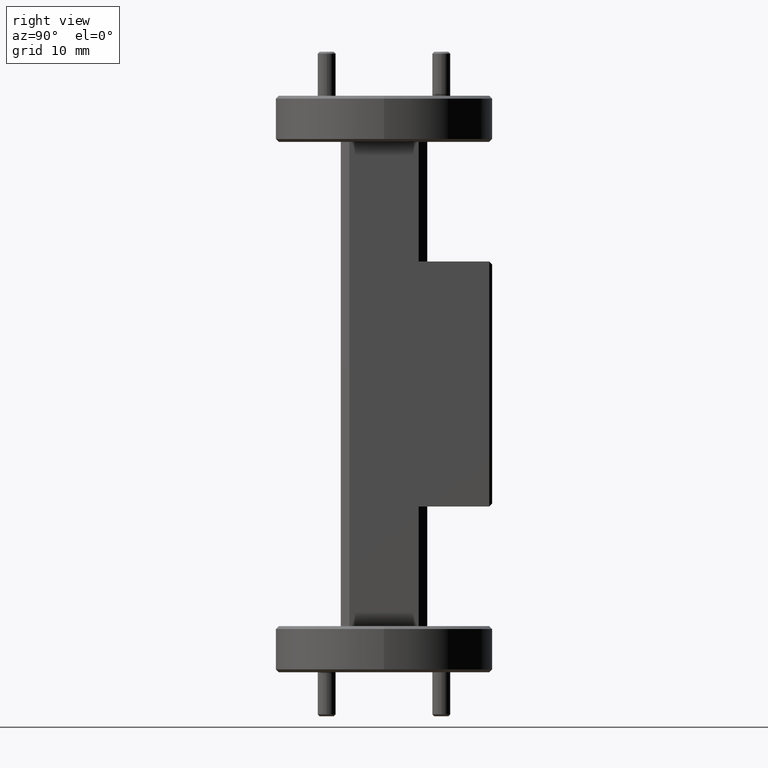
[diagram: clean part render]
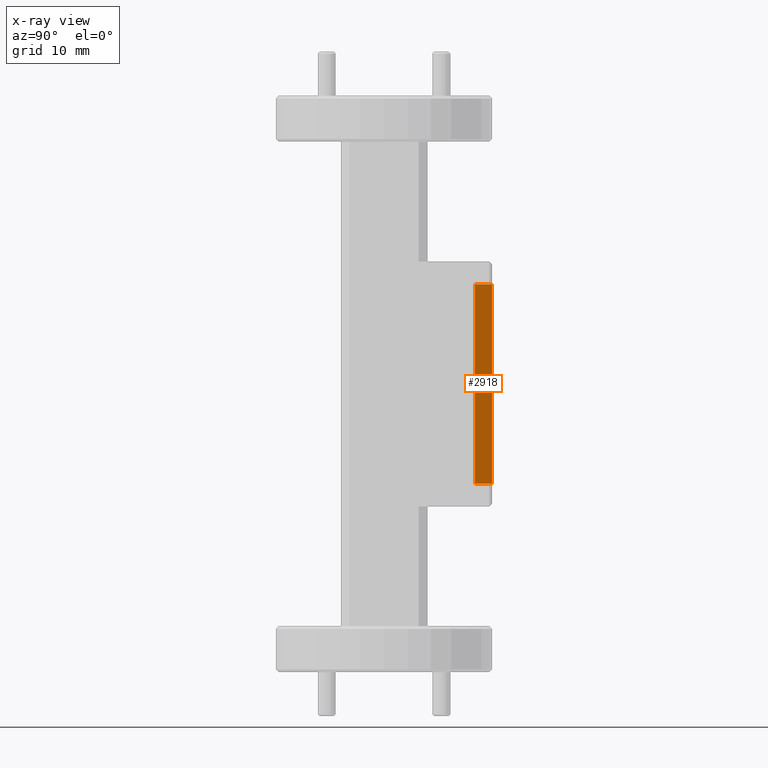
[diagram: x-ray — body ghosted, one internal face saturated and labeled with its STEP entity id]
A machine part, right view, then the same camera in x-ray: the body is ghosted and one INTERNAL B-rep face — a face not visible from any outside direction — is saturated and labeled: STEP entity #2918.
In plain terms, the highlighted planar face has unit normal (1, 0, -0).
Its self-contained STEP definition (entity closure, byte-faithful):
#38 = CARTESIAN_POINT ( 'NONE',  ( 0.1174999999999998684, 0.3150000000000000577, -0.3450000000000000844 ) ) ;
#217 = CARTESIAN_POINT ( 'NONE',  ( 0.1174999999999999795, 0.3150000000000000577, 0.3449999999999998068 ) ) ;
#283 = LINE ( 'NONE', #6521, #4229 ) ;
#298 = DIRECTION ( 'NONE',  ( -1.484699996556665039E-16, -0.000000000000000000, -1.000000000000000000 ) ) ;
#595 = EDGE_CURVE ( 'NONE', #6013, #2043, #283, .T. ) ;
#676 = EDGE_CURVE ( 'NONE', #4477, #2043, #7270, .T. ) ;
#686 = LINE ( 'NONE', #217, #3543 ) ;
#750 = ORIENTED_EDGE ( 'NONE', *, *, #595, .T. ) ;
#864 = DIRECTION ( 'NONE',  ( -1.484699996556665039E-16, -0.000000000000000000, -1.000000000000000000 ) ) ;
#1005 = PLANE ( 'NONE',  #2902 ) ;
#1381 = VECTOR ( 'NONE', #6691, 39.37007874015748143 ) ;
#1449 = ORIENTED_EDGE ( 'NONE', *, *, #6125, .T. ) ;
#1667 = VECTOR ( 'NONE', #298, 39.37007874015748143 ) ;
#1963 = CARTESIAN_POINT ( 'NONE',  ( 0.1174999999999998684, 0.3150000000000000577, -0.3450000000000000844 ) ) ;
#2043 = VERTEX_POINT ( 'NONE', #4965 ) ;
#2766 = ORIENTED_EDGE ( 'NONE', *, *, #676, .F. ) ;
#2902 = AXIS2_PLACEMENT_3D ( 'NONE', #4490, #6220, #3349 ) ;
#2918 = ADVANCED_FACE ( 'NONE', ( #4449 ), #1005, .F. ) ;
#3217 = CARTESIAN_POINT ( 'NONE',  ( 0.1174999999999998684, 0.3150000000000000577, -0.3450000000000000844 ) ) ;
#3349 = DIRECTION ( 'NONE',  ( -1.484699996556665286E-16, 0.000000000000000000, -1.000000000000000000 ) ) ;
#3389 = EDGE_CURVE ( 'NONE', #6769, #4477, #6327, .T. ) ;
#3543 = VECTOR ( 'NONE', #5401, 39.37007874015748143 ) ;
#4118 = EDGE_LOOP ( 'NONE', ( #750, #2766, #7403, #1449 ) ) ;
#4229 = VECTOR ( 'NONE', #864, 39.37007874015748143 ) ;
#4449 = FACE_OUTER_BOUND ( 'NONE', #4118, .T. ) ;
#4477 = VERTEX_POINT ( 'NONE', #38 ) ;
#4490 = CARTESIAN_POINT ( 'NONE',  ( 0.1174999999999998684, 0.3150000000000000577, -0.3450000000000000844 ) ) ;
#4965 = CARTESIAN_POINT ( 'NONE',  ( 0.1174999999999998684, 0.3750000000000000555, -0.3450000000000000844 ) ) ;
#5116 = CARTESIAN_POINT ( 'NONE',  ( 0.1174999999999999795, 0.3150000000000000577, 0.3449999999999998068 ) ) ;
#5401 = DIRECTION ( 'NONE',  ( -0.000000000000000000, 1.000000000000000000, -0.000000000000000000 ) ) ;
#6013 = VERTEX_POINT ( 'NONE', #7097 ) ;
#6125 = EDGE_CURVE ( 'NONE', #6769, #6013, #686, .T. ) ;
#6220 = DIRECTION ( 'NONE',  ( 1.000000000000000000, 0.000000000000000000, -1.484699996556665286E-16 ) ) ;
#6327 = LINE ( 'NONE', #3217, #1667 ) ;
#6521 = CARTESIAN_POINT ( 'NONE',  ( 0.1174999999999998684, 0.3750000000000000555, -0.3450000000000000844 ) ) ;
#6691 = DIRECTION ( 'NONE',  ( -0.000000000000000000, 1.000000000000000000, -0.000000000000000000 ) ) ;
#6769 = VERTEX_POINT ( 'NONE', #5116 ) ;
#7097 = CARTESIAN_POINT ( 'NONE',  ( 0.1174999999999999795, 0.3750000000000000555, 0.3449999999999998068 ) ) ;
#7270 = LINE ( 'NONE', #1963, #1381 ) ;
#7403 = ORIENTED_EDGE ( 'NONE', *, *, #3389, .F. ) ;